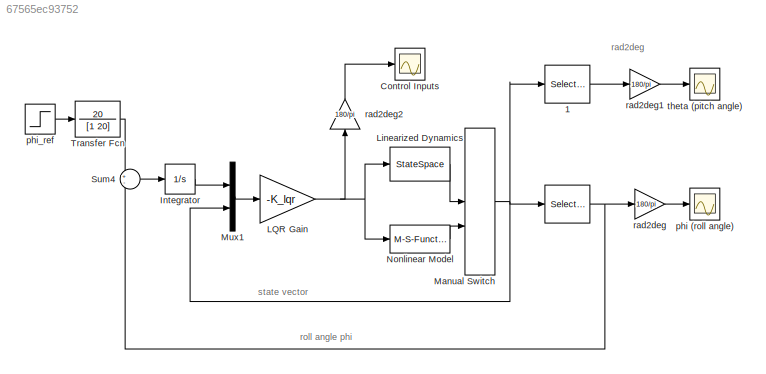
MODEL slx_67565ec93752
KIND model
CONFIG AbsTol = auto
CONFIG EnableMultiTasking = on
CONFIG FixedStep = auto
CONFIG MaxStep = auto
CONFIG MinStep = auto
CONFIG PreLoadFcn = load lqrpilotData
CONFIG RelTol = 1e-3
CONFIG SampleTimeConstraint = Unconstrained
CONFIG SolverName = ode45
CONFIG StartTime = 0.0
CONFIG StopTime = 60
BLOCK [Selector]  
  IndexOptions = Index vector (dialog)
  Indices = 8
  InputPortWidth = 8
  OutputSizes = 1
BLOCK [Selector]  1
  IndexOptions = Index vector (dialog)
  Indices = 7
  InputPortWidth = 8
  OutputSizes = 1
BLOCK [Scope] Control Inputs
  Floating = off
  NumInputPorts = 1
  ScopeSpecificationString = Simulink.scopes.TimeScopeBlockCfg('CurrentConfiguration', extmgr.ConfigurationSet(extmgr.Configuration('Core','General UI',true),extmgr.Configuration('Core','Source UI',true),extmgr.Configuration('Sources','WiredSimulink',true,'DataLoggingVariableName','ScopeData2','DataLoggingSaveFormat','StructureWithTime','DataLoggingDecimation','1','DataLoggingDecimateData',true),extmgr.Configuration('Visuals'...<+1663ch>
BLOCK [Integrator] Integrator
BLOCK [Gain] LQR Gain
  Gain = -K_lqr
  Multiplication = Matrix(K*u)
  OutDataTypeStr = Inherit: Same as input
  ParamDataTypeStr = Inherit: Same as input
  SaturateOnIntegerOverflow = on
BLOCK [StateSpace] Linearized Dynamics
  A = A15
  B = B
  C = eye(8)
  D = zeros(8,4)
  InitialCondition = 0
BLOCK [ManualSwitch] Manual Switch
  CurrentSetting = 0
BLOCK [Mux] Mux1
  DisplayOption = bar
  Inputs = 2
  NameLocation = top
BLOCK [M-S-Function] Nonlinear Model
  FunctionName = sf_aerodyn
BLOCK [Sum] Sum4
  InputSameDT = on
  Inputs = +-
  OutDataTypeStr = Inherit: Same as first input
  SaturateOnIntegerOverflow = on
BLOCK [TransferFcn] Transfer Fcn
  Denominator = [1 20]
  Numerator = 20
BLOCK [Scope] phi (roll angle)
  Floating = off
  NumInputPorts = 1
  ScopeSpecificationString = Simulink.scopes.TimeScopeBlockCfg('CurrentConfiguration', extmgr.ConfigurationSet(extmgr.Configuration('Core','General UI',true),extmgr.Configuration('Core','Source UI',true),extmgr.Configuration('Sources','WiredSimulink',true,'DataLoggingSaveFormat','StructureWithTime','DataLoggingDecimation','1','DataLoggingDecimateData',true),extmgr.Configuration('Visuals','Time Domain',true,'SerializedDisplays...<+1624ch>
BLOCK [Step] phi_ref
  After = pi/3
  SampleTime = 0
  Time = 0
BLOCK [Gain] rad2deg
  Gain = 180/pi
  NameLocation = top
  OutDataTypeStr = Inherit: Same as input
  ParamDataTypeStr = Inherit: Same as input
  SaturateOnIntegerOverflow = on
BLOCK [Gain] rad2deg1
  Gain = 180/pi
  NameLocation = top
  OutDataTypeStr = Inherit: Same as input
  ParamDataTypeStr = Inherit: Same as input
  SaturateOnIntegerOverflow = on
BLOCK [Gain] rad2deg2
  Gain = 180/pi
  NameLocation = right
  OutDataTypeStr = Inherit: Same as input
  ParamDataTypeStr = Inherit: Same as input
  SaturateOnIntegerOverflow = on
BLOCK [Scope] theta (pitch angle)
  Floating = off
  NumInputPorts = 1
  ScopeSpecificationString = Simulink.scopes.TimeScopeBlockCfg('CurrentConfiguration', extmgr.ConfigurationSet(extmgr.Configuration('Core','General UI',true),extmgr.Configuration('Core','Source UI',true),extmgr.Configuration('Sources','WiredSimulink',true,'DataLoggingVariableName','ScopeData1','DataLoggingSaveFormat','StructureWithTime','DataLoggingDecimation','1','DataLoggingDecimateData',true),extmgr.Configuration('Visuals'...<+1692ch>
ANNOTATION (root): rad2deg
ANNOTATION (root): roll angle phi
ANNOTATION (root): state vector
LINE  1:1 -> rad2deg1:1
NET  :1 -> Sum4:2, rad2deg:1
LINE Integrator:1 -> Mux1:1
NET LQR Gain:1 -> Linearized Dynamics:1, Nonlinear Model:1, rad2deg2:1
LINE Linearized Dynamics:1 -> Manual Switch:1
NET Manual Switch:1 ->  1:1,  :1, Mux1:2
LINE Mux1:1 -> LQR Gain:1
LINE Nonlinear Model:1 -> Manual Switch:2
LINE Sum4:1 -> Integrator:1
LINE Transfer Fcn:1 -> Sum4:1
LINE phi_ref:1 -> Transfer Fcn:1
LINE rad2deg1:1 -> theta (pitch angle):1
LINE rad2deg2:1 -> Control Inputs:1
LINE rad2deg:1 -> phi (roll angle):1
note: NET lines group one-source signal fan-out (src -> all destinations, sorted); 1:1 wires keep LINE
